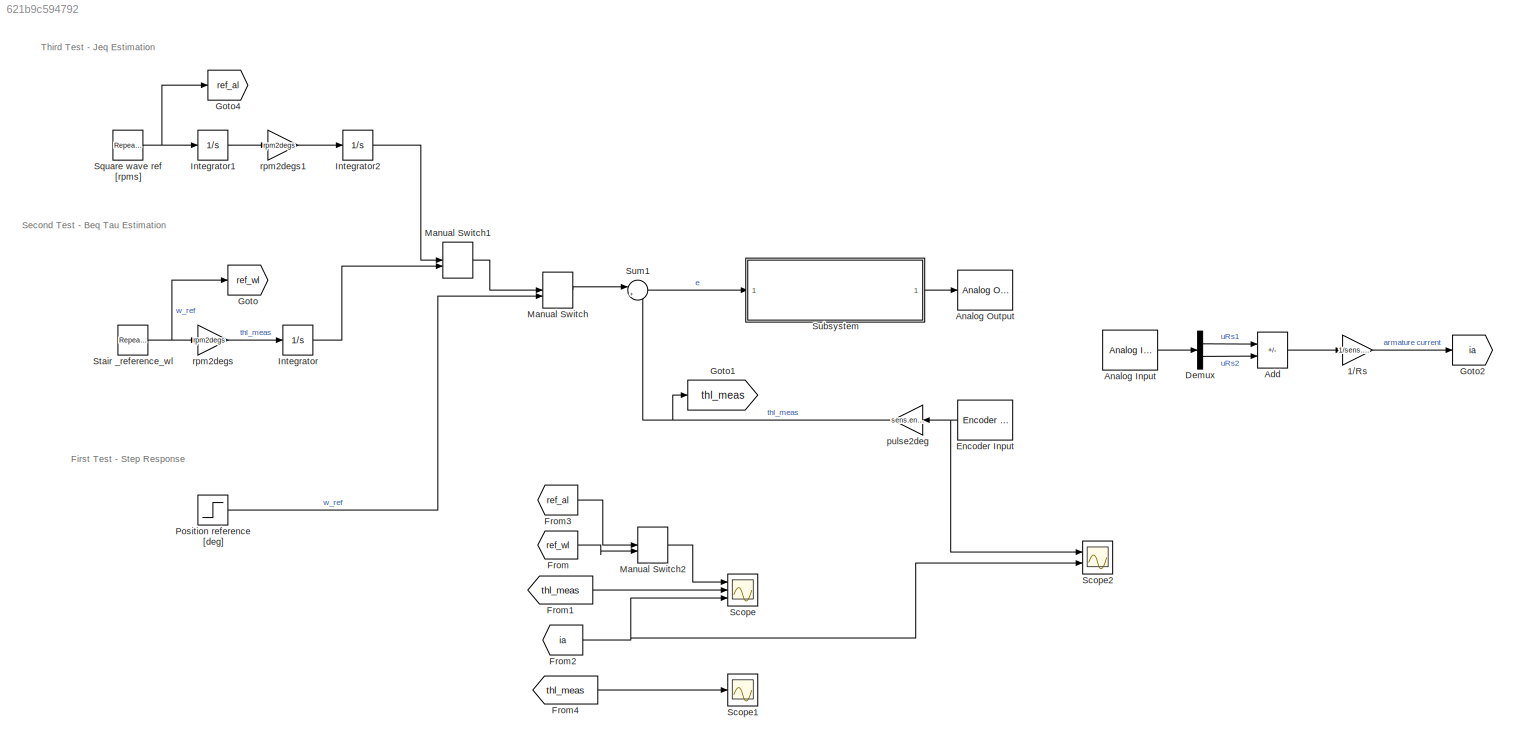
MODEL slx_621b9c594792
KIND model
CONFIG AbsTol = auto
CONFIG EnableMultiTasking = off
CONFIG FixedStep = 0.001
CONFIG MaxStep = auto
CONFIG MinStep = auto
CONFIG RelTol = 1e-3
CONFIG SampleTimeConstraint = Unconstrained
CONFIG SolverName = ode5
CONFIG StartTime = 0.0
CONFIG StopTime = Inf
BLOCK [Gain] 1//Rs
  Gain = 1/sens.curr.Rs
BLOCK [Sum] Add
  IconShape = rectangular
  Inputs = +-
  Ports = [2, 1]
BLOCK [Reference] Analog Input  REF=sldrtlib/Analog Input
  AttributesFormatString = National Instruments\nPCI-6221 [auto]
  Ports = [0, 1]
  SourceBlock = sldrtlib/Analog Input
  SourceProductBaseCode = WT
  SourceType = Simulink Desktop Real-Time Analog Input
BLOCK [Reference] Analog Output  REF=sldrtlib/Analog Output
  AttributesFormatString = National Instruments\nPCI-6221 [auto]
  Ports = [1]
  SourceBlock = sldrtlib/Analog Output
  SourceProductBaseCode = WT
  SourceType = Simulink Desktop Real-Time Analog Output
BLOCK [Demux] Demux
  Outputs = 2
  Ports = [1, 2]
BLOCK [Reference] Encoder Input  REF=sldrtlib/Encoder Input
  AttributesFormatString = National Instruments\nPCI-6221 [auto]
  NameLocation = top
  Ports = [0, 1]
  SourceBlock = sldrtlib/Encoder Input
  SourceProductBaseCode = WT
  SourceType = Simulink Desktop Real-Time Encoder Input
BLOCK [From] From
  GotoTag = ref_wl
BLOCK [From] From1
  GotoTag = thl_meas
BLOCK [From] From2
  GotoTag = ia
BLOCK [From] From3
  GotoTag = ref_al
BLOCK [From] From4
  GotoTag = thl_meas
BLOCK [Goto] Goto
  GotoTag = ref_wl
BLOCK [Goto] Goto1
  GotoTag = thl_meas
BLOCK [Goto] Goto2
  GotoTag = ia
BLOCK [Goto] Goto4
  GotoTag = ref_al
BLOCK [Integrator] Integrator
  Ports = [1, 1]
BLOCK [Integrator] Integrator1
  Ports = [1, 1]
BLOCK [Integrator] Integrator2
  Ports = [1, 1]
BLOCK [ManualSwitch] Manual Switch
  CurrentSetting = 0
BLOCK [ManualSwitch] Manual Switch1
  CurrentSetting = 0
BLOCK [ManualSwitch] Manual Switch2
BLOCK [Step] Position reference [deg]
  After = 10
  SampleTime = 0
BLOCK [Scope] Scope
  Floating = off
  NumInputPorts = 3
  Ports = [3]
  ScopeSpecificationString = Simulink.scopes.TimeScopeBlockCfg('CurrentConfiguration', extmgr.ConfigurationSet(extmgr.Configuration('Core','General UI',true),extmgr.Configuration('Core','Source UI',true),extmgr.Configuration('Sources','WiredSimulink',true,'DataLoggingVariableName','ScopeEst','DataLogging',true,'DataLoggingSaveFormat','StructureWithTime'),extmgr.Configuration('Visuals','Time Domain',true,'SerializedDisplays',{...<+2752ch>
BLOCK [Scope] Scope1
  Floating = off
  NumInputPorts = 1
  Ports = [1]
  ScopeSpecificationString = Simulink.scopes.TimeScopeBlockCfg('CurrentConfiguration', extmgr.ConfigurationSet(extmgr.Configuration('Core','General UI',true),extmgr.Configuration('Core','Source UI',true),extmgr.Configuration('Sources','WiredSimulink',true,'DataLoggingVariableName','ScopeThl','DataLogging',true,'DataLoggingSaveFormat','StructureWithTime'),extmgr.Configuration('Visuals','Time Domain',true,'SerializedDisplays',{...<+1501ch>
BLOCK [Scope] Scope2
  Floating = off
  NumInputPorts = 2
  Ports = [2]
  ScopeSpecificationString = Simulink.scopes.TimeScopeBlockCfg('CurrentConfiguration', extmgr.ConfigurationSet(extmgr.Configuration('Core','General UI',true),extmgr.Configuration('Core','Source UI',true),extmgr.Configuration('Sources','WiredSimulink',true,'DataLoggingVariableName','ScopeOutputMot','DataLogging',true,'DataLoggingSaveFormat','StructureWithTime'),extmgr.Configuration('Visuals','Time Domain',true,'SerializedDispl...<+2078ch>
BLOCK [Reference] Square wave ref [rpms]  REF=simulink/Sources/Repeating
Sequence
Stair
  Ports = [0, 1]
  SourceBlock = simulink/Sources/Repeating\nSequence\nStair
  SourceProductBaseCode = SL
  SourceType = Repeating Sequence Stair
BLOCK [Reference] Stair _reference_wl  REF=simulink/Sources/Repeating
Sequence
Stair
  Ports = [0, 1]
  SourceBlock = simulink/Sources/Repeating\nSequence\nStair
  SourceProductBaseCode = SL
  SourceType = Repeating Sequence Stair
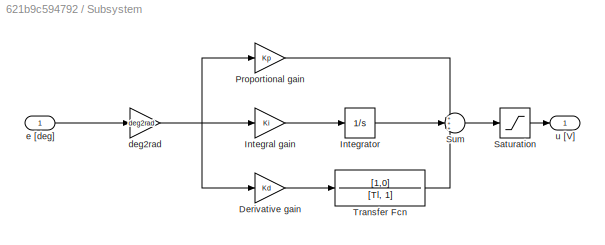
BLOCK [SubSystem] Subsystem
  Ports = [1, 1]
  RequestExecContextInheritance = off
BLOCK [Gain] Subsystem/Derivative gain
  Gain = Kd
BLOCK [Gain] Subsystem/Integral gain
  Gain = Ki
BLOCK [Integrator] Subsystem/Integrator
  Ports = [1, 1]
BLOCK [Gain] Subsystem/Proportional gain
  Gain = Kp
BLOCK [Saturate] Subsystem/Saturation
  LowerLimit = -10
  NameLocation = top
  UpperLimit = 10
BLOCK [Sum] Subsystem/Sum
  Inputs = +++
  Ports = [3, 1]
BLOCK [TransferFcn] Subsystem/Transfer Fcn
  Denominator = [Tl, 1]
  Numerator = [1,0]
BLOCK [Gain] Subsystem/deg2rad
  Gain = deg2rad
BLOCK [Inport] Subsystem/e [deg]
BLOCK [Outport] Subsystem/u [V]
BLOCK [Sum] Sum1
  Inputs = |+-
  Ports = [2, 1]
BLOCK [Gain] pulse2deg
  Gain = sens.enc.pulse2deg
BLOCK [Gain] rpm2degs
  Gain = rpm2degs
BLOCK [Gain] rpm2degs1
  Gain = rpm2degs
ANNOTATION (root): First Test - Step Response
ANNOTATION (root): Second Test - Beq Tau Estimation
ANNOTATION (root): Third Test - Jeq Estimation
LINE 1//Rs:1 -> Goto2:1
LINE Add:1 -> 1//Rs:1
LINE Analog Input:1 -> Demux:1
LINE Demux:1 -> Add:1
LINE Demux:2 -> Add:2
NET Encoder Input:1 -> Scope2:1, pulse2deg:1
LINE From1:1 -> Scope:2
NET From2:1 -> Scope2:2, Scope:3
LINE From3:1 -> Manual Switch2:1
LINE From4:1 -> Scope1:1
LINE From:1 -> Manual Switch2:2
LINE Integrator1:1 -> rpm2degs1:1
LINE Integrator2:1 -> Manual Switch1:1
LINE Integrator:1 -> Manual Switch1:2
LINE Manual Switch1:1 -> Manual Switch:1
LINE Manual Switch2:1 -> Scope:1
LINE Manual Switch:1 -> Sum1:1
LINE Position reference [deg]:1 -> Manual Switch:2
NET Square wave ref [rpms]:1 -> Goto4:1, Integrator1:1
NET Stair _reference_wl:1 -> Goto:1, rpm2degs:1
LINE Subsystem/Derivative gain:1 -> Subsystem/Transfer Fcn:1
LINE Subsystem/Integral gain:1 -> Subsystem/Integrator:1
LINE Subsystem/Integrator:1 -> Subsystem/Sum:2
LINE Subsystem/Proportional gain:1 -> Subsystem/Sum:1
LINE Subsystem/Saturation:1 -> Subsystem/u [V]:1
LINE Subsystem/Sum:1 -> Subsystem/Saturation:1
LINE Subsystem/Transfer Fcn:1 -> Subsystem/Sum:3
NET Subsystem/deg2rad:1 -> Subsystem/Derivative gain:1, Subsystem/Integral gain:1, Subsystem/Proportional gain:1
LINE Subsystem/e [deg]:1 -> Subsystem/deg2rad:1
LINE Subsystem:1 -> Analog Output:1
LINE Sum1:1 -> Subsystem:1
NET pulse2deg:1 -> Goto1:1, Sum1:2
LINE rpm2degs1:1 -> Integrator2:1
LINE rpm2degs:1 -> Integrator:1
note: NET lines group one-source signal fan-out (src -> all destinations, sorted); 1:1 wires keep LINE
